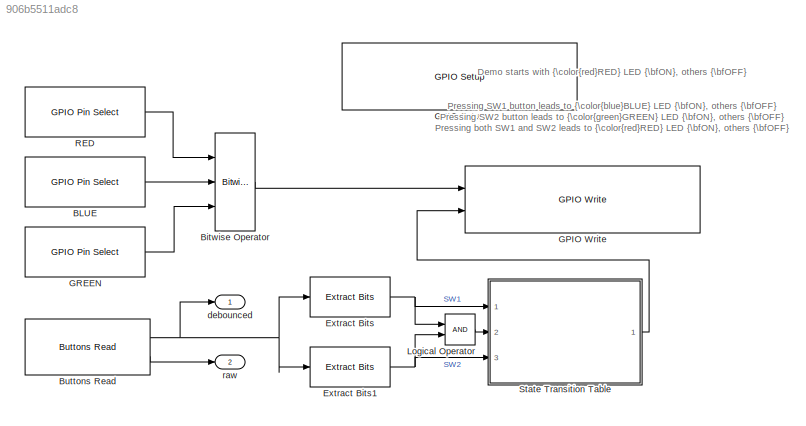
MODEL slx_906b5511adc8
KIND model
BLOCK [Reference] BLUE  REF=stellaris_lib/GPIO/GPIO Pin Select
  GPIO_PIN_X = GPIO_PIN_2
  Ports = [0, 1]
  SourceBlock = stellaris_lib/GPIO/GPIO Pin Select
  SourceType = GPIO pin selector
BLOCK [Reference] Bitwise Operator  REF=simulink/Logic and Bit
Operations/Bitwise
Operator
  BitMask = bin2dec('11011001')
  BitMaskRealWorld = Stored Integer
  NumInputPorts = 3
  Ports = [3, 1]
  SourceBlock = simulink/Logic and Bit\nOperations/Bitwise\nOperator
  SourceType = Bitwise Operator
  UseBitMask = off
  logicop = OR
BLOCK [Reference] Buttons Read  REF=stellaris_lib/Buttons/Buttons Read
  Ports = [0, 2]
  SourceBlock = stellaris_lib/Buttons/Buttons Read
  SourceType = Buttons
BLOCK [Reference] Extract Bits  REF=simulink/Logic and Bit
Operations/Extract Bits
  Ports = [1, 1]
  SourceBlock = simulink/Logic and Bit\nOperations/Extract Bits
  SourceType = Extract Bits
  bitIdxRange = 0
  bitsToExtract = Range of bits
  numBits = 8
  outScalingMode = Treat bit field as an integer
BLOCK [Reference] Extract Bits1  REF=simulink/Logic and Bit
Operations/Extract Bits
  Ports = [1, 1]
  SourceBlock = simulink/Logic and Bit\nOperations/Extract Bits
  SourceType = Extract Bits
  bitIdxRange = 4
  bitsToExtract = Range of bits
  numBits = 8
  outScalingMode = Treat bit field as an integer
BLOCK [Reference] GPIO Setup  REF=stellaris_lib/GPIO/GPIO Setup
  GPIO_PORTX_BASE = GPIO_PORTF_BASE
  PinsOutput_0 = Input
  PinsOutput_1 = Output
  PinsOutput_2 = Output
  PinsOutput_3 = Output
  PinsOutput_4 = Input
  PinsOutput_5 = Input
  PinsOutput_6 = Input
  PinsOutput_7 = Input
  Ports = []
  SourceBlock = stellaris_lib/GPIO/GPIO Setup
  SourceType = GPIO Setup
BLOCK [Reference] GPIO Write  REF=stellaris_lib/GPIO/GPIO Write
  GPIO_PORTX_BASE = GPIO_PORTF_BASE
  Ports = [2]
  SourceBlock = stellaris_lib/GPIO/GPIO Write
  SourceType = GPIO Write
BLOCK [Reference] GREEN  REF=stellaris_lib/GPIO/GPIO Pin Select
  GPIO_PIN_X = GPIO_PIN_3
  Ports = [0, 1]
  SourceBlock = stellaris_lib/GPIO/GPIO Pin Select
  SourceType = GPIO pin selector
BLOCK [Logic] Logical Operator
  AllPortsSameDT = off
  OutDataTypeStr = boolean
  Ports = [2, 1]
BLOCK [Reference] RED  REF=stellaris_lib/GPIO/GPIO Pin Select
  GPIO_PIN_X = GPIO_PIN_1
  Ports = [0, 1]
  SourceBlock = stellaris_lib/GPIO/GPIO Pin Select
  SourceType = GPIO pin selector
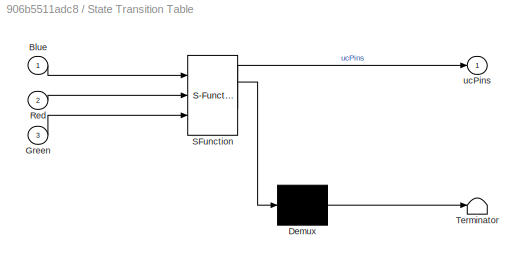
BLOCK [SubSystem] State Transition Table
  ErrorFcn = Stateflow.Translate.translate
  FunctionWithSeparateData = off
  MaskHideContents = off
  MinAlgLoopOccurrences = off
  Opaque = off
  PermitHierarchicalResolution = ExplicitOnly
  Ports = [3, 1]
  PropExecContextOutsideSubsystem = off
  RTWSystemCode = Auto
  RequestExecContextInheritance = off
  SFBlockType = State Transition Table
  TreatAsAtomicUnit = on
BLOCK [Demux] State Transition Table/ Demux 
  Outputs = 1
  Ports = [1, 1]
BLOCK [S-Function] State Transition Table/ SFunction 
  EnableBusSupport = off
  FunctionName = sf_sfun
  PortCounts = [3 2]
  Ports = [3, 2]
  Tag = Stateflow S-Function stellaris_test_buttons 4
BLOCK [Terminator] State Transition Table/ Terminator 
BLOCK [Inport] State Transition Table/Blue
  IconDisplay = Port number
BLOCK [Inport] State Transition Table/Green
  IconDisplay = Port number
  Port = 3
BLOCK [Inport] State Transition Table/Red
  IconDisplay = Port number
  Port = 2
BLOCK [Outport] State Transition Table/ucPins
  IconDisplay = Port number
BLOCK [Outport] debounced
  IconDisplay = Port number
BLOCK [Outport] raw
  IconDisplay = Port number
  Port = 2
ANNOTATION (root): Demo starts with {\color{red}RED} LED {\bfON}, others {\bfOFF} Pressing SW1 button leads to {\color{blue}BLUE} LED {\bfON}, others {\bfOFF} Pressing SW2 button leads to {\color{green}GREEN} LED {\bfON}, others {\bfOFF} Pressing both SW1 and SW2 leads to {\color{red}RED} LED {\bfON}, others {\bfOFF}
LINE BLUE:1 -> Bitwise Operator:2
LINE Bitwise Operator:1 -> GPIO Write:1
NET Buttons Read:1 -> Extract Bits1:1, Extract Bits:1, debounced:1
LINE Buttons Read:2 -> raw:1
NET Extract Bits1:1 -> Logical Operator:2, State Transition Table:3
NET Extract Bits:1 -> Logical Operator:1, State Transition Table:1
LINE GREEN:1 -> Bitwise Operator:3
LINE Logical Operator:1 -> State Transition Table:2
LINE RED:1 -> Bitwise Operator:1
LINE State Transition Table:1 -> GPIO Write:2
note: NET lines group one-source signal fan-out (src -> all destinations, sorted); 1:1 wires keep LINE
